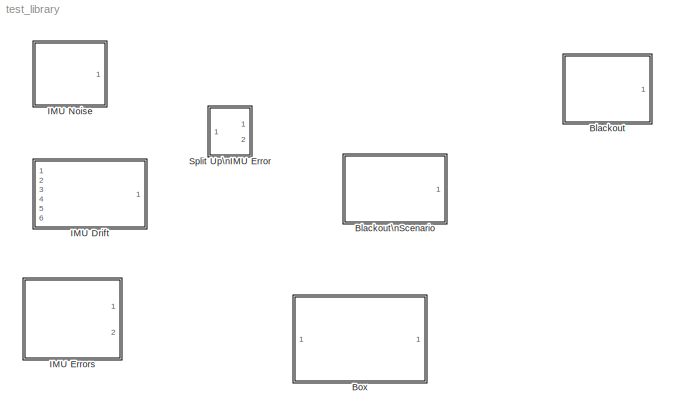
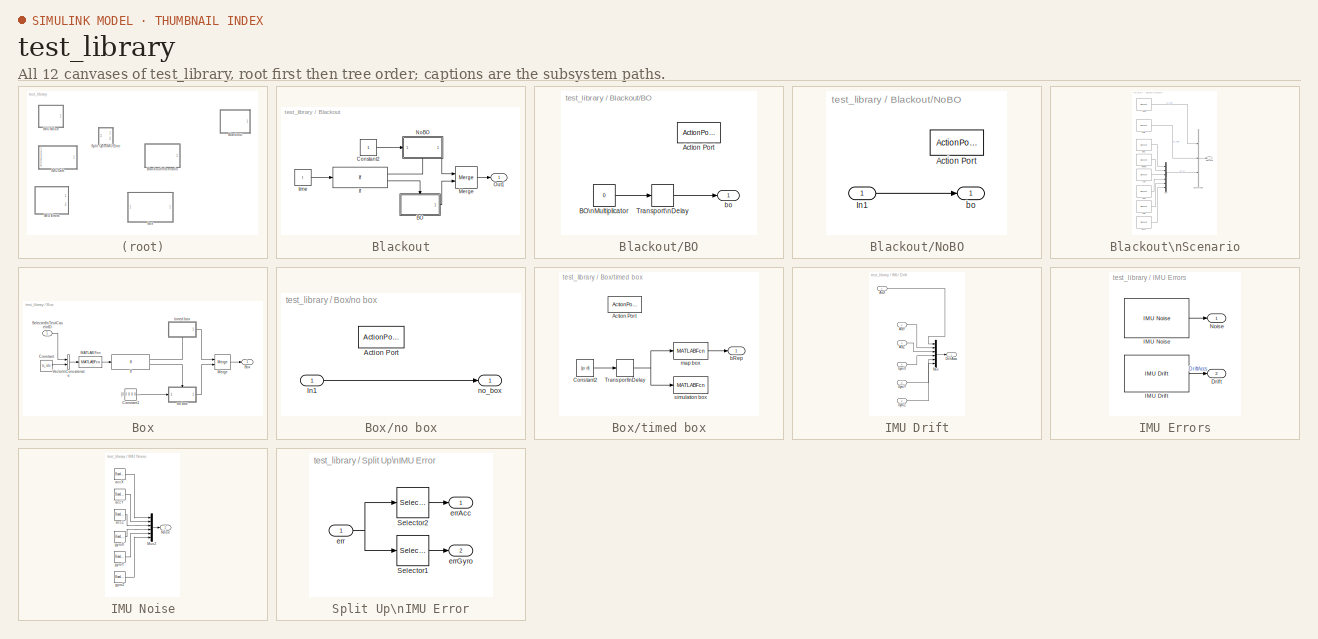
[diagram: thumbnail index - all 12 canvases of the model, root first then tree order]
MODEL test_library
KIND library
BLOCK [SubSystem] Blackout
  FunctionWithSeparateData = off
  MaskDescription = Block to schedule sensor system blackout events.\nThe blackout occures after the number of seconds, specified as \"Time of Blackout\".\nIf -1 is set as time, there will not be a blackout event at all.
  MaskDisplay = fprintf('Time\\nTiggered\\nBlackout');\n\nport_label('output', 1, 'bo');
  MaskEnableString = on
  MaskHideContents = off
  MaskIconFrame = on
  MaskIconOpaque = on
  MaskIconRotate = none
  MaskIconUnits = autoscale
  MaskPortRotate = default
  MaskPromptString = Time of Blackout [seconds]
  MaskStyleString = edit
  MaskToolTipString = on
  MaskTunableValueString = on
  MaskValueString = tUS_RHS
  MaskVariables = t=@1;
  MaskVisibilityString = on
  MinAlgLoopOccurrences = off
  Opaque = off
  Ports = [0, 1]
  PropExecContextOutsideSubsystem = off
  RTWSystemCode = Auto
  RequestExecContextInheritance = off
  SID = 230
BLOCK [SubSystem] Blackout/BO
  FunctionWithSeparateData = off
  MaskHideContents = off
  MinAlgLoopOccurrences = off
  Opaque = off
  Ports = [0, 1, 0, 0, 0, 0, 0, 1]
  PropExecContextOutsideSubsystem = off
  RTWSystemCode = Auto
  RequestExecContextInheritance = off
  SID = 231
  TreatAsAtomicUnit = on
BLOCK [ActionPort] Blackout/BO/Action Port
  SID = 233
BLOCK [Constant] Blackout/BO/BO\nMultiplicator
  SID = 254
  Value = 0
  VectorParams1D = off
BLOCK [TransportDelay] Blackout/BO/Transport\nDelay
  BufferSize = 16384
  DelayTime = abs(t)
  InitialOutput = 1
  Ports = [1, 1]
  SID = 255
BLOCK [Outport] Blackout/BO/bo
  IconDisplay = Port number
  SID = 234
BLOCK [Constant] Blackout/Constant2
  SID = 240
  VectorParams1D = off
BLOCK [If] Blackout/If
  IfExpression = u1 < 0
  Ports = [1, 2]
  SID = 236
BLOCK [Merge] Blackout/Merge
  Ports = [2, 1]
  SID = 237
BLOCK [SubSystem] Blackout/NoBO
  FunctionWithSeparateData = off
  MaskHideContents = off
  MinAlgLoopOccurrences = off
  Opaque = off
  Ports = [1, 1, 0, 0, 0, 0, 0, 1]
  PropExecContextOutsideSubsystem = off
  RTWSystemCode = Auto
  RequestExecContextInheritance = off
  SID = 238
  TreatAsAtomicUnit = on
BLOCK [ActionPort] Blackout/NoBO/Action Port
  SID = 239
BLOCK [Inport] Blackout/NoBO/In1
  IconDisplay = Port number
  SID = 343
BLOCK [Outport] Blackout/NoBO/bo
  IconDisplay = Port number
  SID = 241
BLOCK [Outport] Blackout/Out1
  IconDisplay = Port number
  SID = 244
BLOCK [Constant] Blackout/time
  SID = 243
  Value = t
  VectorParams1D = off
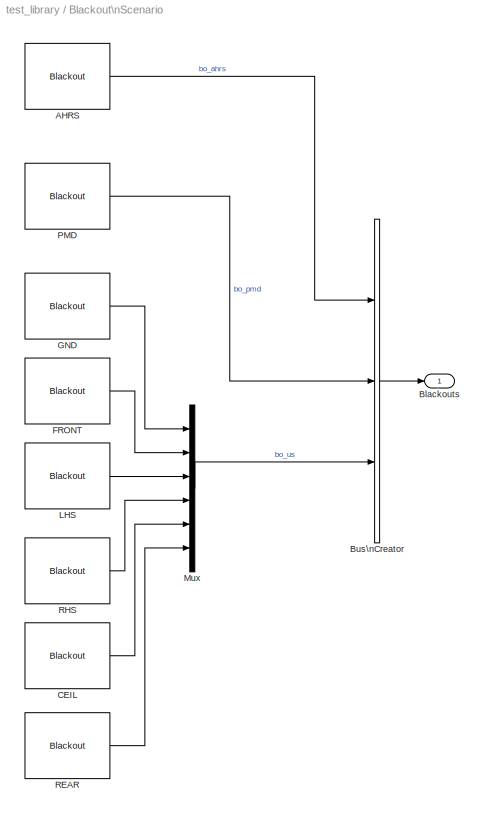
BLOCK [SubSystem] Blackout\nScenario
  FunctionWithSeparateData = off
  MaskCallbackString = |||||||
  MaskDescription = Specifiy simulation time in seconds, after which a blackout of the respective system shall occure.\nOr '-1', if the System shall not fail.
  MaskDisplay = fprintf('Blackout\\nScenario');\n\nport_label('output',1,'Bo');
  MaskEnableString = on,on,on,on,on,on,on,on
  MaskHideContents = off
  MaskIconFrame = on
  MaskIconOpaque = on
  MaskIconRotate = none
  MaskIconUnits = autoscale
  MaskPortRotate = default
  MaskPromptString = Blackout Time AHRS|Blackout Time PMD|Blackout Time Ultra Sonic Ground|Blackout Time Ultra Sonic Front|Blackout Time Ultra Sonic LHS|Blackout Time Ultra Sonic RHS|Blackout Time Ultra Sonic Ceiling|Blackout Time Ultra Sonic Rear
  MaskStyleString = edit,edit,edit,edit,edit,edit,edit,edit
  MaskToolTipString = on,on,on,on,on,on,on,on
  MaskTunableValueString = on,on,on,on,on,on,on,on
  MaskValueString = -1|60|-1|-1|96|-1|-1|-1
  MaskVariables = tAHRS=@1;tPMD=@2;tUS_GND=@3;tUS_FRONT=@4;tUS_LHS=@5;tUS_RHS=@6;tUS_CEIL=@7;tUS_REAR=@8;
  MaskVisibilityString = on,on,on,on,on,on,on,on
  MinAlgLoopOccurrences = off
  Opaque = off
  Ports = [0, 1]
  PropExecContextOutsideSubsystem = off
  RTWSystemCode = Auto
  RequestExecContextInheritance = off
  SID = 318
BLOCK [Reference] Blackout\nScenario/AHRS  REF=test_library/Blackout  (lib defined in slx_4c4a53204023)
  Ports = [0, 1]
  SID = 319
  SourceBlock = test_library/Blackout
  t = tAHRS
BLOCK [Outport] Blackout\nScenario/Blackouts
  IconDisplay = Port number
  SID = 332
BLOCK [BusCreator] Blackout\nScenario/Bus\nCreator
  DisplayOption = bar
  Inputs = 3
  Ports = [3, 1]
  SID = 335
BLOCK [Reference] Blackout\nScenario/CEIL  REF=test_library/Blackout  (lib defined in slx_4c4a53204023)
  Ports = [0, 1]
  SID = 320
  SourceBlock = test_library/Blackout
  t = tUS_CEIL
BLOCK [Reference] Blackout\nScenario/FRONT  REF=test_library/Blackout  (lib defined in slx_4c4a53204023)
  Ports = [0, 1]
  SID = 321
  SourceBlock = test_library/Blackout
  t = tUS_FRONT
BLOCK [Reference] Blackout\nScenario/GND  REF=test_library/Blackout  (lib defined in slx_4c4a53204023)
  Ports = [0, 1]
  SID = 322
  SourceBlock = test_library/Blackout
  t = tUS_GND
BLOCK [Reference] Blackout\nScenario/LHS  REF=test_library/Blackout  (lib defined in slx_4c4a53204023)
  Ports = [0, 1]
  SID = 323
  SourceBlock = test_library/Blackout
  t = tUS_LHS
BLOCK [Mux] Blackout\nScenario/Mux
  DisplayOption = bar
  Inputs = 6
  Ports = [6, 1]
  SID = 325
BLOCK [Reference] Blackout\nScenario/PMD  REF=test_library/Blackout  (lib defined in slx_4c4a53204023)
  Ports = [0, 1]
  SID = 326
  SourceBlock = test_library/Blackout
  t = tPMD
BLOCK [Reference] Blackout\nScenario/REAR  REF=test_library/Blackout  (lib defined in slx_4c4a53204023)
  Ports = [0, 1]
  SID = 327
  SourceBlock = test_library/Blackout
  t = tUS_REAR
BLOCK [Reference] Blackout\nScenario/RHS  REF=test_library/Blackout  (lib defined in slx_4c4a53204023)
  Ports = [0, 1]
  SID = 328
  SourceBlock = test_library/Blackout
  t = tUS_RHS
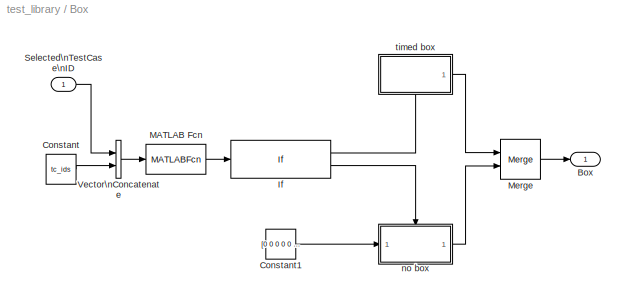
BLOCK [SubSystem] Box
  FunctionWithSeparateData = off
  MaskCallbackString = |||
  MaskDescription = Creates a Box with the given dimensinos at the given position after the given number of seconds.\nBy giving one or more scenario ids, the Box will be triggered for the corresponding obstacle scenarios.\n\n(This block also takes care about the visualization within the 3D simulation.)
  MaskDisplay = str = '';\n\nfor i = tc_ids,\n    str = [str sprintf(' %d', i)];\nend;\n    \nfprintf('TimedStaticBox\\n\\n(App.: %gs)\\n\\nTest Cases: %s', t, str);\n\nport_label ('output', 1, 'B-Rep');\nport_label ('input', 1, 'S. ID');
  MaskEnableString = on,on,on,on
  MaskHideContents = off
  MaskIconFrame = on
  MaskIconOpaque = on
  MaskIconRotate = none
  MaskIconUnits = autoscale
  MaskPortRotate = default
  MaskPromptString = Appearance Time|Box Position|Box Dimensions|Belongs to Test Cases (Set of Numbers)
  MaskStyleString = edit,edit,edit,edit
  MaskToolTipString = on,on,on,on
  MaskTunableValueString = on,on,on,on
  MaskValueString = 1|[0, 0, 0]|[1, 2, 3]|[1 2]
  MaskVariables = t=@1;p=@2;d=@3;tc_ids=@4;
  MaskVisibilityString = on,on,on,on
  MinAlgLoopOccurrences = off
  Opaque = off
  Ports = [1, 1]
  PropExecContextOutsideSubsystem = off
  RTWSystemCode = Auto
  RequestExecContextInheritance = off
  SID = 168
BLOCK [Outport] Box/Box
  IconDisplay = Port number
  SID = 279
BLOCK [Constant] Box/Constant
  SID = 284
  Value = tc_ids
BLOCK [Constant] Box/Constant1
  SID = 278
  Value = [0 0 0 0 0 0 0 0 0; 0 0 0 0 0 0 0 0 0; 0 0 0 0 0 0 0 0 0;0 0 0 0 0 0 0 0 0; 0 0 0 0 0 0 0 0 0; 0 0 0 0 0 0 0 0 0]
BLOCK [If] Box/If
  IfExpression = u1 == 1
  Ports = [1, 2]
  SID = 258
BLOCK [MATLABFcn] Box/MATLAB Fcn
  MATLABFcn = objectSelected(u(1), u(2:size(u)))
  Ports = [1, 1]
  SID = 336
BLOCK [Merge] Box/Merge
  InitialOutput = [0 0 0 0 0 0 0 0 0; 0 0 0 0 0 0 0 0 0; 0 0 0 0 0 0 0 0 0;0 0 0 0 0 0 0 0 0; 0 0 0 0 0 0 0 0 0; 0 0 0 0 0 0 0 0 0]
  Ports = [2, 1]
  SID = 280
BLOCK [Inport] Box/Selected\nTestCase\nID
  IconDisplay = Port number
  SID = 256
BLOCK [Concatenate] Box/Vector\nConcatenate
  Ports = [2, 1]
  SID = 337
BLOCK [SubSystem] Box/no box
  FunctionWithSeparateData = off
  MaskHideContents = off
  MinAlgLoopOccurrences = off
  Opaque = off
  Ports = [1, 1, 0, 0, 0, 0, 0, 1]
  PropExecContextOutsideSubsystem = off
  RTWSystemCode = Auto
  RequestExecContextInheritance = off
  SID = 259
  TreatAsAtomicUnit = on
BLOCK [ActionPort] Box/no box/Action Port
  SID = 261
BLOCK [Inport] Box/no box/In1
  IconDisplay = Port number
  SID = 344
BLOCK [Outport] Box/no box/no_box
  IconDisplay = Port number
  SID = 262
BLOCK [SubSystem] Box/timed box
  FunctionWithSeparateData = off
  MaskHideContents = off
  MinAlgLoopOccurrences = off
  Opaque = off
  Ports = [0, 1, 0, 0, 0, 0, 0, 1]
  PropExecContextOutsideSubsystem = off
  RTWSystemCode = Auto
  RequestExecContextInheritance = off
  SID = 269
  TreatAsAtomicUnit = on
BLOCK [ActionPort] Box/timed box/Action Port
  SID = 271
BLOCK [Constant] Box/timed box/Constant2
  SID = 273
  Value = [p; d]
  VectorParams1D = off
BLOCK [TransportDelay] Box/timed box/Transport\nDelay
  BufferSize = 18432
  DelayTime = t
  Ports = [1, 1]
  SID = 274
BLOCK [Outport] Box/timed box/bRep
  IconDisplay = Port number
  SID = 277
BLOCK [MATLABFcn] Box/timed box/map box
  MATLABFcn = BoxMatrix
  Output1D = off
  OutputDimensions = [6, 9]
  Ports = [1, 1]
  SID = 275
BLOCK [MATLABFcn] Box/timed box/simulation box
  MATLABFcn = newBox
  Output1D = off
  OutputDimensions = 0
  Ports = [1]
  SID = 276
BLOCK [SubSystem] IMU Drift
  FunctionWithSeparateData = off
  MaskDisplay = fprintf('IMU<path>');\n\nport_label('output', 1, 'err');\n\nport_label('input', 1, 'AccX');\nport_label('input', 2, 'AccY');\nport_label('input', 3, 'AccZ');\nport_label('input', 4, 'GyroX');\nport_label('input', 5, 'GyroY');\nport_label('input', 6, 'GyroZ');
  MaskHideContents = off
  MaskIconFrame = on
  MaskIconOpaque = on
  MaskIconRotate = none
  MaskIconUnits = autoscale
  MaskPortRotate = default
  MinAlgLoopOccurrences = off
  Opaque = off
  Ports = [6, 1]
  PropExecContextOutsideSubsystem = off
  RTWSystemCode = Auto
  RequestExecContextInheritance = off
  SID = 217
BLOCK [Inport] IMU Drift/AccX
  IconDisplay = Port number
  SID = 304
BLOCK [Inport] IMU Drift/AccY
  IconDisplay = Port number
  Port = 2
  SID = 305
BLOCK [Inport] IMU Drift/AccZ
  IconDisplay = Port number
  Port = 3
  SID = 306
BLOCK [Outport] IMU Drift/DriftAccs
  IconDisplay = Port number
  SID = 226
BLOCK [Inport] IMU Drift/GyroX
  IconDisplay = Port number
  Port = 4
  SID = 307
BLOCK [Inport] IMU Drift/GyroY
  IconDisplay = Port number
  Port = 5
  SID = 308
BLOCK [Inport] IMU Drift/GyroZ
  IconDisplay = Port number
  Port = 6
  SID = 309
BLOCK [Mux] IMU Drift/Mux
  DisplayOption = bar
  Inputs = 6
  Ports = [6, 1]
  SID = 218
BLOCK [SubSystem] IMU Errors
  FunctionWithSeparateData = off
  MaskCallbackString = ||||||||||||||||||||
  MaskDescription = Enter the Test Case parameters here.\n\nSpecify the maximum absolute error for each of the IMU data components.\n
  MaskDisplay = fprintf('Sensor\\nErrors');\n\nport_label('output', 1, 'Noise');\nport_label('output', 2, 'Drifts');
  MaskEnableString = on,on,on,on,on,on,on,on,on,on,on,on,on,on,on,on,on,on,on,on,on
  MaskHideContents = off
  MaskIconFrame = on
  MaskIconOpaque = on
  MaskIconRotate = none
  MaskIconUnits = autoscale
  MaskPortRotate = default
  MaskPromptString = AHRS Blackout Time|Laser Blackout Time|PMD Blackout Time|US GND Blackout Time|US FRONT Blackout Time|US LHS Blackout Time|US RHS Blackout Time|US CEILING Blackout Time|US REAR Blackout Time|Max ACC X Noise|Max ACC Y Noise|Max ACC Z Noise|Max ACC X Drift|Max ACC Y Drift|Max ACC Z Drift|Max Gyro X Noise|Max Gyro Y Noise|MaxGyro Z Noise|Max Gyro X Drift|Max Gyro Y Drift|Max Gyro Z Drift
  MaskStyleString = edit,edit,edit,edit,edit,edit,edit,edit,edit,edit,edit,edit,edit,edit,edit,edit,edit,edit,edit,edit,edit
  MaskToolTipString = on,on,on,on,on,on,on,on,on,on,on,on,on,on,on,on,on,on,on,on,on
  MaskTunableValueString = on,on,on,on,on,on,on,on,on,on,on,on,on,on,on,on,on,on,on,on,on
  MaskValueString = -1|-1|-1|-1|-1|-1|-1|-1|-1|0|0|0|0|0|0|0|0|0|0|0|0
  MaskVariables = tAHRS=@1;tLaser=@2;tPMD=@3;tUS_GND=@4;tUS_FRONT=@5;tUS_LHS=@6;tUS_RHS=@7;tUS_CEIL=@8;tUS_REAR=@9;nAccX=@10;nAccY=@11;nAccZ=@12;dAccX=@13;dAccY=@14;dAccZ=@15;nGyroX=@16;nGyroY=@17;nGyroZ=@18;dGyroX=@19;dGyroY=@20;dGyroZ=@21;
  MaskVisibilityString = on,on,on,on,on,on,on,on,on,on,on,on,on,on,on,on,on,on,on,on,on
  MinAlgLoopOccurrences = off
  Opaque = off
  Ports = [0, 2]
  PropExecContextOutsideSubsystem = off
  RTWSystemCode = Auto
  RequestExecContextInheritance = off
  SID = 1
BLOCK [Outport] IMU Errors/Drift
  IconDisplay = Port number
  Port = 2
  SID = 317
BLOCK [Reference] IMU Errors/IMU Drift  REF=test_library/IMU Drift  (lib defined in slx_4c4a53204023)
  FunctionWithSeparateData = off
  Ports = [6, 1]
  RTWMemSecDataConstants = Inherit from model
  RTWMemSecDataInternal = Inherit from model
  RTWMemSecDataParameters = Inherit from model
  RTWMemSecFuncExecute = Inherit from model
  RTWMemSecFuncInitTerm = Inherit from model
  SID = 228
  ShowPortLabels = FromPortIcon
  SourceBlock = test_library/IMU Drift
  SourceType = Unknown
  SystemSampleTime = -1
BLOCK [Reference] IMU Errors/IMU Noise  REF=test_library/IMU Noise  (lib defined in slx_4c4a53204023)
  FunctionWithSeparateData = off
  Ports = [0, 1]
  RTWMemSecDataConstants = Inherit from model
  RTWMemSecDataInternal = Inherit from model
  RTWMemSecDataParameters = Inherit from model
  RTWMemSecFuncExecute = Inherit from model
  RTWMemSecFuncInitTerm = Inherit from model
  SID = 229
  ShowPortLabels = FromPortIcon
  SourceBlock = test_library/IMU Noise
  SourceType = Unknown
  SystemSampleTime = -1
  accX = nAccX
  accY = nAccY
  accZ = nAccZ
  gX = nGyroX
  gY = nGyroY
  gZ = nGyroZ
BLOCK [Outport] IMU Errors/Noise
  IconDisplay = Port number
  SID = 316
BLOCK [SubSystem] IMU Noise
  FunctionWithSeparateData = off
  MaskCallbackString = ||||||
  MaskDescription = Specify maximum absolute error values for the IMU noise generation.
  MaskDisplay = fprintf('IMU\\nNoise');\n\nport_label('output', 1, 'err');
  MaskEnableString = on,on,on,on,on,on,on
  MaskHideContents = off
  MaskIconFrame = on
  MaskIconOpaque = on
  MaskIconRotate = none
  MaskIconUnits = autoscale
  MaskPortRotate = default
  MaskPromptString = Max Noise Acc X|Max Noise Acc Y|Max Noise Acc Z|Max Noise Gyro X|Max Noise Gyro Y|Max Noise Gyro Z|Sample Time
  MaskStyleString = edit,edit,edit,edit,edit,edit,edit
  MaskToolTipString = on,on,on,on,on,on,on
  MaskTunableValueString = on,on,on,on,on,on,on
  MaskValueString = 0|0.025|0|0|0|0|0.01
  MaskVariables = accX=@1;accY=@2;accZ=@3;gX=@4;gY=@5;gZ=@6;sTime=@7;
  MaskVisibilityString = on,on,on,on,on,on,on
  MinAlgLoopOccurrences = off
  Opaque = off
  Ports = [0, 1]
  PropExecContextOutsideSubsystem = off
  RTWSystemCode = Auto
  RequestExecContextInheritance = off
  SID = 213
BLOCK [Mux] IMU Noise/Mux2
  DisplayOption = bar
  Inputs = 6
  Ports = [6, 1]
  SID = 204
BLOCK [Outport] IMU Noise/Noise
  IconDisplay = Port number
  SID = 215
BLOCK [Reference] IMU Noise/accX  REF=simulink/Sources/Band-Limited\nWhite Noise
  Cov = [accX]
  Ports = [0, 1]
  SID = 205
  SourceBlock = simulink/Sources/Band-Limited\nWhite Noise
  SourceType = Band-Limited White Noise.
  Ts = sTime
  VectorParams1D = on
  seed = [round(cputime*1000)]
BLOCK [Reference] IMU Noise/accY  REF=simulink/Sources/Band-Limited\nWhite Noise
  Cov = [accY]
  Ports = [0, 1]
  SID = 206
  SourceBlock = simulink/Sources/Band-Limited\nWhite Noise
  SourceType = Band-Limited White Noise.
  Ts = sTime
  VectorParams1D = on
  seed = [round(cputime*1000)]
BLOCK [Reference] IMU Noise/accZ  REF=simulink/Sources/Band-Limited\nWhite Noise
  Cov = [accZ]
  Ports = [0, 1]
  SID = 207
  SourceBlock = simulink/Sources/Band-Limited\nWhite Noise
  SourceType = Band-Limited White Noise.
  Ts = sTime
  VectorParams1D = on
  seed = [round(cputime*1000)]
BLOCK [Reference] IMU Noise/gyroX  REF=simulink/Sources/Band-Limited\nWhite Noise
  Cov = [gX]
  Ports = [0, 1]
  SID = 208
  SourceBlock = simulink/Sources/Band-Limited\nWhite Noise
  SourceType = Band-Limited White Noise.
  Ts = sTime
  VectorParams1D = on
  seed = [round(cputime*1000)]
BLOCK [Reference] IMU Noise/gyroY  REF=simulink/Sources/Band-Limited\nWhite Noise
  Cov = [gY]
  Ports = [0, 1]
  SID = 209
  SourceBlock = simulink/Sources/Band-Limited\nWhite Noise
  SourceType = Band-Limited White Noise.
  Ts = sTime
  VectorParams1D = on
  seed = [round(cputime*1000)]
BLOCK [Reference] IMU Noise/gyroZ  REF=simulink/Sources/Band-Limited\nWhite Noise
  Cov = [gZ]
  Ports = [0, 1]
  SID = 210
  SourceBlock = simulink/Sources/Band-Limited\nWhite Noise
  SourceType = Band-Limited White Noise.
  Ts = sTime
  VectorParams1D = on
  seed = [round(cputime*1000)]
BLOCK [SubSystem] Split Up\nIMU Error
  FunctionWithSeparateData = off
  MaskHideContents = off
  MinAlgLoopOccurrences = off
  Opaque = off
  Ports = [1, 2]
  PropExecContextOutsideSubsystem = off
  RTWSystemCode = Auto
  RequestExecContextInheritance = off
  SID = 310
BLOCK [Selector] Split Up\nIMU Error/Selector1
  IndexOptions = Index vector (dialog)
  Indices = [4 5 6]
  InputPortWidth = 6
  OutputSizes = 1
  Ports = [1, 1]
  SID = 312
BLOCK [Selector] Split Up\nIMU Error/Selector2
  IndexOptions = Index vector (dialog)
  Indices = [1 2 3]
  InputPortWidth = 6
  OutputSizes = 1
  Ports = [1, 1]
  SID = 313
BLOCK [Inport] Split Up\nIMU Error/err
  IconDisplay = Port number
  SID = 311
BLOCK [Outport] Split Up\nIMU Error/errAcc
  IconDisplay = Port number
  SID = 314
BLOCK [Outport] Split Up\nIMU Error/errGyro
  IconDisplay = Port number
  Port = 2
  SID = 315
LINE Blackout/BO/BO\nMultiplicator:1 -> Blackout/BO/Transport\nDelay:1
LINE Blackout/BO/Transport\nDelay:1 -> Blackout/BO/bo:1
LINE Blackout/BO:1 -> Blackout/Merge:2
LINE Blackout/Constant2:1 -> Blackout/NoBO:1
LINE Blackout/If:1 -> Blackout/NoBO:ifaction
LINE Blackout/If:2 -> Blackout/BO:ifaction
LINE Blackout/Merge:1 -> Blackout/Out1:1
LINE Blackout/NoBO/In1:1 -> Blackout/NoBO/bo:1
LINE Blackout/NoBO:1 -> Blackout/Merge:1
LINE Blackout/time:1 -> Blackout/If:1
LINE Blackout\nScenario/AHRS:1 -> Blackout\nScenario/Bus\nCreator:1
LINE Blackout\nScenario/Bus\nCreator:1 -> Blackout\nScenario/Blackouts:1
LINE Blackout\nScenario/CEIL:1 -> Blackout\nScenario/Mux:5
LINE Blackout\nScenario/FRONT:1 -> Blackout\nScenario/Mux:2
LINE Blackout\nScenario/GND:1 -> Blackout\nScenario/Mux:1
LINE Blackout\nScenario/LHS:1 -> Blackout\nScenario/Mux:3
LINE Blackout\nScenario/Mux:1 -> Blackout\nScenario/Bus\nCreator:3
LINE Blackout\nScenario/PMD:1 -> Blackout\nScenario/Bus\nCreator:2
LINE Blackout\nScenario/REAR:1 -> Blackout\nScenario/Mux:6
LINE Blackout\nScenario/RHS:1 -> Blackout\nScenario/Mux:4
LINE Box/Constant1:1 -> Box/no box:1
LINE Box/Constant:1 -> Box/Vector\nConcatenate:2
LINE Box/If:1 -> Box/timed box:ifaction
LINE Box/If:2 -> Box/no box:ifaction
LINE Box/MATLAB Fcn:1 -> Box/If:1
LINE Box/Merge:1 -> Box/Box:1
LINE Box/Selected\nTestCase\nID:1 -> Box/Vector\nConcatenate:1
LINE Box/Vector\nConcatenate:1 -> Box/MATLAB Fcn:1
LINE Box/no box/In1:1 -> Box/no box/no_box:1
LINE Box/no box:1 -> Box/Merge:2
LINE Box/timed box/Constant2:1 -> Box/timed box/Transport\nDelay:1
NET Box/timed box/Transport\nDelay:1 -> Box/timed box/map box:1, Box/timed box/simulation box:1
LINE Box/timed box/map box:1 -> Box/timed box/bRep:1
LINE Box/timed box:1 -> Box/Merge:1
LINE IMU Drift/AccX:1 -> IMU Drift/Mux:1
LINE IMU Drift/AccY:1 -> IMU Drift/Mux:2
LINE IMU Drift/AccZ:1 -> IMU Drift/Mux:3
LINE IMU Drift/GyroX:1 -> IMU Drift/Mux:4
LINE IMU Drift/GyroY:1 -> IMU Drift/Mux:5
LINE IMU Drift/GyroZ:1 -> IMU Drift/Mux:6
LINE IMU Drift/Mux:1 -> IMU Drift/DriftAccs:1
LINE IMU Errors/IMU Drift:1 -> IMU Errors/Drift:1
LINE IMU Errors/IMU Noise:1 -> IMU Errors/Noise:1
LINE IMU Noise/Mux2:1 -> IMU Noise/Noise:1
LINE IMU Noise/accX:1 -> IMU Noise/Mux2:1
LINE IMU Noise/accY:1 -> IMU Noise/Mux2:2
LINE IMU Noise/accZ:1 -> IMU Noise/Mux2:3
LINE IMU Noise/gyroX:1 -> IMU Noise/Mux2:4
LINE IMU Noise/gyroY:1 -> IMU Noise/Mux2:5
LINE IMU Noise/gyroZ:1 -> IMU Noise/Mux2:6
LINE Split Up\nIMU Error/Selector1:1 -> Split Up\nIMU Error/errGyro:1
LINE Split Up\nIMU Error/Selector2:1 -> Split Up\nIMU Error/errAcc:1
NET Split Up\nIMU Error/err:1 -> Split Up\nIMU Error/Selector1:1, Split Up\nIMU Error/Selector2:1
note: NET lines group one-source signal fan-out (src -> all destinations, sorted); 1:1 wires keep LINE
note: 1 file-system path scrubbed to <path> (not preserved elsewhere — flat text is the only slx artifact)
